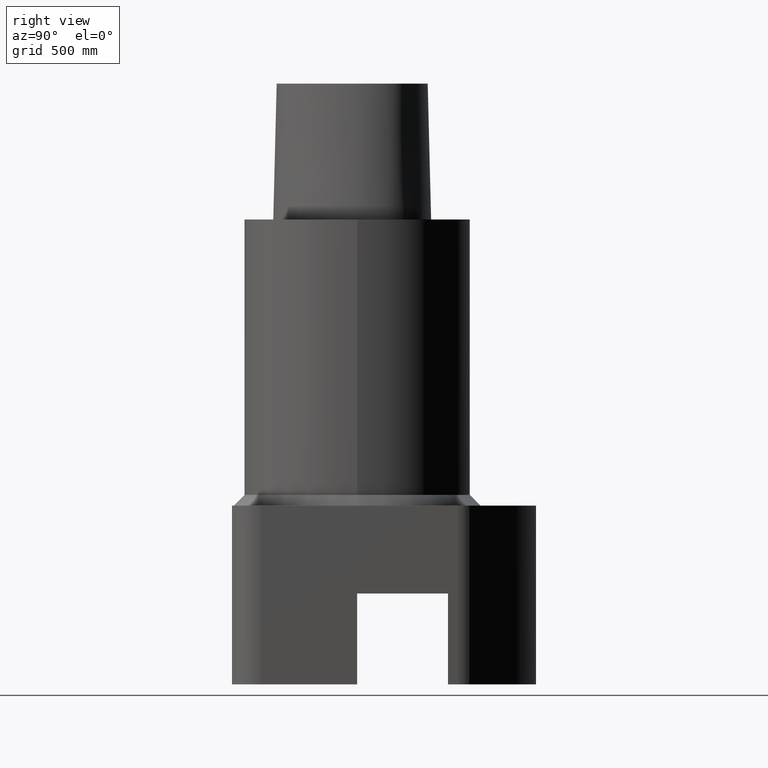
[diagram: clean part render]
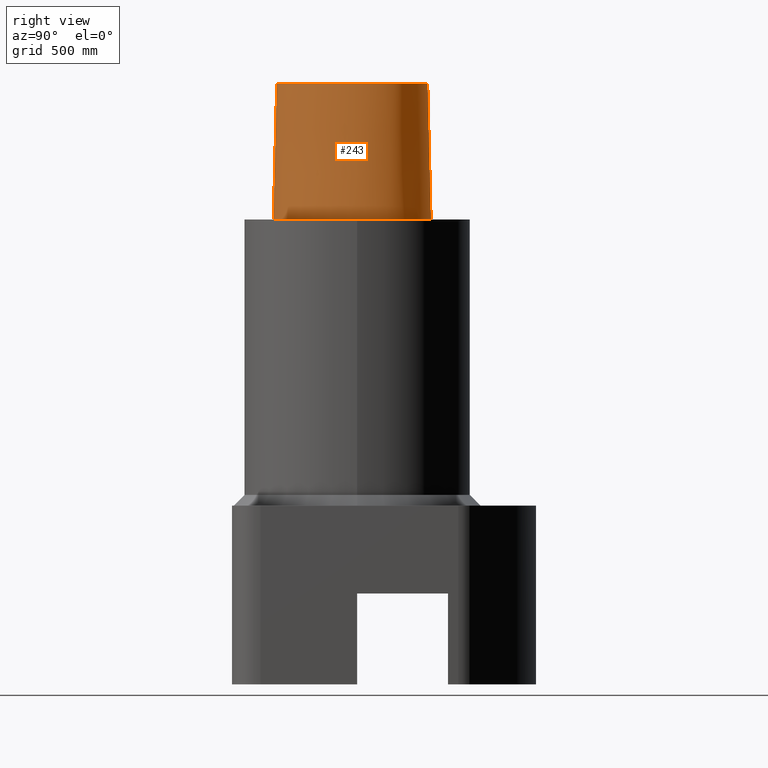
[diagram: same view with one face highlighted and labeled with its STEP entity id]
A machine part, right view. The second image highlights one B-rep face of the part: STEP entity #243.
In plain terms, the highlighted face is a freeform B-spline surface patch.
Its self-contained STEP definition (entity closure, byte-faithful):
#198=EDGE_CURVE('Unnamed[1]',#397,#409,#421,.T.);
#207=EDGE_CURVE('Unnamed[1]',#269,#431,#432,.T.);
#224=EDGE_CURVE('Unnamed[1]',#431,#409,#453,.T.);
#230=EDGE_CURVE('Unnamed[1]',#397,#269,#459,.T.);
#243=ADVANCED_FACE('Unnamed[1]',(#473),#474,.T.);
#269=VERTEX_POINT('',#493);
#397=VERTEX_POINT('',#674);
#409=VERTEX_POINT('',#707);
#421=LINE('',#740,#741);
#431=VERTEX_POINT('',#756);
#432=LINE('',#757,#758);
#453=B_SPLINE_CURVE_WITH_KNOTS('',3,(#858,#859,#860,#861,#862,#863,#864,#865,#866,#867,#868,#869,#870,#871,#872,#873,#874),.UNSPECIFIED.,.F.,.F.,(4,1,1,1,1,1,1,1,1,1,1,1,1,1,4),(-13.2302678617486,-12.816821991069,-12.4033761203893,-11.9899302497097,-11.57648437903,-11.1630385083504,-10.9563155730106,-10.7495926376707,-10.3361467669911,-9.92270089631145,-9.09580915495216,-8.26891741359287,-7.44202567223358,-7.02857980155394,-6.6151339308743),.UNSPECIFIED.);
#459=B_SPLINE_CURVE_WITH_KNOTS('',3,(#885,#886,#887,#888,#889,#890,#891,#892,#893,#894,#895,#896,#897,#898,#899,#900),.UNSPECIFIED.,.F.,.F.,(4,1,1,1,1,1,1,1,1,1,1,1,1,4),(6.61513393087476,6.99917207152274,7.48193246986995,7.96289324787093,8.45540287038584,9.10291653679981,9.67129810936083,10.1618749681153,10.6358867802489,11.1080734988593,11.6043706019633,12.09451993853,12.6985979284494,13.2302678617486),.UNSPECIFIED.);
#473=FACE_OUTER_BOUND('',#923,.T.);
#474=B_SPLINE_SURFACE_WITH_KNOTS('',3,3,((#924,#925,#926,#927),(#928,#929,#930,#931),(#932,#933,#934,#935),(#936,#937,#938,#939),(#940,#941,#942,#943),(#944,#945,#946,#947),(#948,#949,#950,#951),(#952,#953,#954,#955),(#956,#957,#958,#959),(#960,#961,#962,#963),(#964,#965,#966,#967),(#968,#969,#970,#971),(#972,#973,#974,#975),(#976,#977,#978,#979),(#980,#981,#982,#983),(#984,#985,#986,#987),(#988,#989,#990,#991)),.UNSPECIFIED.,.F.,.F.,.F.,(4,1,1,1,1,1,1,1,1,1,1,1,1,1,4),(4,4),(-13.2302678617486,-12.816821991069,-12.4033761203893,-11.9899302497097,-11.57648437903,-11.1630385083504,-10.9563155730106,-10.7495926376707,-10.3361467669911,-9.92270089631145,-9.09580915495216,-8.26891741359287,-7.44202567223358,-7.02857980155394,-6.6151339308743),(-3.8,0.0),.UNSPECIFIED.);
#493=CARTESIAN_POINT('',(-0.001218547003662,19.7276821925089,38.0));
#674=CARTESIAN_POINT('',(0.038736923393866,-22.5191997536361,38.0));
#707=CARTESIAN_POINT('',(0.04359356758149,-23.4691235068931,-1.97215226305253E-031));
#740=CARTESIAN_POINT('',(0.038736923393866,-22.5191997536361,38.0));
#741=VECTOR('',#1173,38.0118715498723);
#756=CARTESIAN_POINT('',(0.044682985379347,20.6765087343109,0.0));
#757=CARTESIAN_POINT('',(-0.001218547003662,19.7276821925089,38.0));
#758=VECTOR('',#1185,38.0118715503078);
#858=CARTESIAN_POINT('',(0.044682985379347,20.6765087343109,0.0));
#859=CARTESIAN_POINT('',(1.42379272427753,20.6097915814392,-1.97215226305253E-031));
#860=CARTESIAN_POINT('',(4.2230955003445,20.4837538303966,-1.97215226305253E-031));
#861=CARTESIAN_POINT('',(8.47220762821777,19.6890432607088,0.0));
#862=CARTESIAN_POINT('',(12.5141247708253,18.2434968480404,-1.97215226305253E-031));
#863=CARTESIAN_POINT('',(16.3038624872874,16.1734192182143,-1.97215226305253E-031));
#864=CARTESIAN_POINT('',(19.1446913988473,13.7036723639434,-3.94430452610506E-031));
#865=CARTESIAN_POINT('',(20.7319894342149,11.1014620996188,-1.97215226305253E-031));
#866=CARTESIAN_POINT('',(21.7831756505763,8.28099229708081,9.86076131526265E-032));
#867=CARTESIAN_POINT('',(22.2258240701438,4.60865440596506,-9.86076131526265E-032));
#868=CARTESIAN_POINT('',(21.7436130080666,-1.11326526354485,-2.46519032881566E-031));
#869=CARTESIAN_POINT('',(19.5519487660502,-7.95432366164584,-5.91645678915759E-031));
#870=CARTESIAN_POINT('',(14.9574167123838,-15.2089785567293,-3.94430452610506E-031));
#871=CARTESIAN_POINT('',(9.66840283021945,-20.0827414369705,0.0));
#872=CARTESIAN_POINT('',(4.51628650521788,-22.7946374572188,0.0));
#873=CARTESIAN_POINT('',(1.55867251738073,-23.4612972770043,-1.97215226305253E-031));
#874=CARTESIAN_POINT('',(0.04359356758149,-23.4691235068931,-1.97215226305253E-031));
#885=CARTESIAN_POINT('',(0.038736923394311,-22.519199753636,38.0));
#886=CARTESIAN_POINT('',(1.31742058183662,-22.512662269405,38.0));
#887=CARTESIAN_POINT('',(4.2093773447498,-21.9116226439989,38.0));
#888=CARTESIAN_POINT('',(8.20895504542113,-19.7798683845067,38.0));
#889=CARTESIAN_POINT('',(11.9784633234593,-16.681663904162,38.0));
#890=CARTESIAN_POINT('',(15.5308821579362,-12.5807487594113,38.0));
#891=CARTESIAN_POINT('',(18.4566248438667,-7.64932246015528,38.0));
#892=CARTESIAN_POINT('',(20.4036090752029,-2.27012499825289,38.0));
#893=CARTESIAN_POINT('',(21.2357187429189,2.79891401173156,38.0));
#894=CARTESIAN_POINT('',(21.0811206267748,7.62543090736657,38.0));
#895=CARTESIAN_POINT('',(19.3383577336563,12.2772250726194,38.0));
#896=CARTESIAN_POINT('',(15.5796322014404,15.5799672120682,38.0));
#897=CARTESIAN_POINT('',(10.8392956074438,17.9834601687347,38.0));
#898=CARTESIAN_POINT('',(5.56068045850571,19.4586143858472,38.0));
#899=CARTESIAN_POINT('',(1.77223893711014,19.6418877095654,38.0));
#900=CARTESIAN_POINT('',(-0.001218367817519,19.7276822012873,38.0));
#923=EDGE_LOOP('',(#1226,#1227,#1228,#1229));
#924=CARTESIAN_POINT('',(-0.001218367817519,19.7276822012873,38.0));
#925=CARTESIAN_POINT('',(0.014082083248157,20.0439577123075,25.3333333333066));
#926=CARTESIAN_POINT('',(0.029382534313671,20.3602332232908,12.6666666666934));
#927=CARTESIAN_POINT('',(0.044682985379347,20.6765087343109,0.0));
#928=CARTESIAN_POINT('',(1.37788651195108,19.6609652834875,38.0));
#929=CARTESIAN_POINT('',(1.3931885827258,19.9772407169847,25.3333333333066));
#930=CARTESIAN_POINT('',(1.40849065356095,20.2935162254648,12.6666666666934));
#931=CARTESIAN_POINT('',(1.42379272427753,20.6097915814392,-1.97215226305253E-031));
#932=CARTESIAN_POINT('',(4.135446440878,19.5347778787784,38.0));
#933=CARTESIAN_POINT('',(4.16466278851883,19.8511031866125,25.3333333333066));
#934=CARTESIAN_POINT('',(4.1938791526746,20.1674284644204,12.6666666666934));
#935=CARTESIAN_POINT('',(4.2230955003445,20.4837538303966,-1.97215226305253E-031));
#936=CARTESIAN_POINT('',(8.213607363795,18.7706026638736,38.0));
#937=CARTESIAN_POINT('',(8.29980745008421,19.0767495109635,25.3333333333066));
#938=CARTESIAN_POINT('',(8.38600751285747,19.3828964329996,12.6666666666934));
#939=CARTESIAN_POINT('',(8.47220762821777,19.6890432607088,0.0));
#940=CARTESIAN_POINT('',(12.1316338645671,17.3698624840857,38.0));
#941=CARTESIAN_POINT('',(12.2591308270381,17.6610739397708,25.3333333333066));
#942=CARTESIAN_POINT('',(12.3866278083543,17.9522853923553,12.6666666666934));
#943=CARTESIAN_POINT('',(12.5141247708253,18.2434968480404,-1.97215226305253E-031));
#944=CARTESIAN_POINT('',(15.7706546153679,15.3789501349612,38.0));
#945=CARTESIAN_POINT('',(15.9483905900895,15.6437731794811,25.3333333333066));
#946=CARTESIAN_POINT('',(16.1261265513272,15.9085961736944,12.6666666666934));
#947=CARTESIAN_POINT('',(16.3038624872874,16.1734192182143,-1.97215226305253E-031));
#948=CARTESIAN_POINT('',(18.4265894256284,13.0570022172893,38.0));
#949=CARTESIAN_POINT('',(18.6659567517146,13.2725589420689,25.3333333333066));
#950=CARTESIAN_POINT('',(18.9053240921419,13.4881156488541,12.6666666666934));
#951=CARTESIAN_POINT('',(19.1446913988473,13.7036723639434,-3.94430452610506E-031));
#952=CARTESIAN_POINT('',(19.8679958653038,10.6923771981998,38.0));
#953=CARTESIAN_POINT('',(20.1559937048299,10.8287388264873,25.3333333333066));
#954=CARTESIAN_POINT('',(20.4439915656177,10.965100461641,12.6666666666934));
#955=CARTESIAN_POINT('',(20.7319894342149,11.1014620996188,-1.97215226305253E-031));
#956=CARTESIAN_POINT('',(20.8470867582337,8.07149548576131,38.0));
#957=CARTESIAN_POINT('',(21.1591164072431,8.14132775555392,25.3333333333066));
#958=CARTESIAN_POINT('',(21.4711459821861,8.21116003697855,12.6666666666934));
#959=CARTESIAN_POINT('',(21.7831756505763,8.28099229708081,9.86076131526265E-032));
#960=CARTESIAN_POINT('',(21.2693244256982,4.61157245650171,38.0));
#961=CARTESIAN_POINT('',(21.5881576801997,4.6105997689982,25.3333333333066));
#962=CARTESIAN_POINT('',(21.9069908544037,4.60962709346857,12.6666666666934));
#963=CARTESIAN_POINT('',(22.2258240701438,4.60865440596506,-9.86076131526265E-032));
#964=CARTESIAN_POINT('',(20.8071610855575,-0.912828649855193,38.0));
#965=CARTESIAN_POINT('',(21.119311671178,-0.979640884839481,25.3333333333066));
#966=CARTESIAN_POINT('',(21.4314624224461,-1.04645306732201,12.6666666666934));
#967=CARTESIAN_POINT('',(21.7436130080666,-1.11326526354485,-2.46519032881566E-031));
#968=CARTESIAN_POINT('',(18.6841935581315,-7.54428794252837,38.0));
#969=CARTESIAN_POINT('',(18.9734452551861,-7.6809665891091,25.3333333333066));
#970=CARTESIAN_POINT('',(19.2626970689956,-7.81764505382656,12.6666666666934));
#971=CARTESIAN_POINT('',(19.5519487660502,-7.95432366164584,-5.91645678915759E-031));
#972=CARTESIAN_POINT('',(14.2175552814,-14.5971504342323,38.0));
#973=CARTESIAN_POINT('',(14.4641757465198,-14.8010930946929,25.3333333333066));
#974=CARTESIAN_POINT('',(14.710796247264,-15.0050359737917,12.6666666666934));
#975=CARTESIAN_POINT('',(14.9574167123838,-15.2089785567293,-3.94430452610506E-031));
#976=CARTESIAN_POINT('',(9.0844808732933,-19.3179298129689,38.0));
#977=CARTESIAN_POINT('',(9.27912152349017,-19.572866915557,25.3333333333066));
#978=CARTESIAN_POINT('',(9.47376218971294,-19.827804295621,12.6666666666934));
#979=CARTESIAN_POINT('',(9.66840283021945,-20.0827414369705,0.0));
#980=CARTESIAN_POINT('',(4.17112919194182,-21.8987568152736,38.0));
#981=CARTESIAN_POINT('',(4.28618163483998,-22.1973837173649,25.3333333333066));
#982=CARTESIAN_POINT('',(4.40123406239433,-22.4960105163661,12.6666666666934));
#983=CARTESIAN_POINT('',(4.51628650521788,-22.7946374572188,0.0));
#984=CARTESIAN_POINT('',(1.41533654381097,-22.5120888467812,38.0));
#985=CARTESIAN_POINT('',(1.46311520162011,-22.8284916374445,25.3333333333066));
#986=CARTESIAN_POINT('',(1.51089385942236,-23.144894486341,12.6666666666934));
#987=CARTESIAN_POINT('',(1.55867251738073,-23.4612972770043,-1.97215226305253E-031));
#988=CARTESIAN_POINT('',(0.038736923393866,-22.5191997536361,38.0));
#989=CARTESIAN_POINT('',(0.04035580478973,-22.8358410047159,25.3333333333066));
#990=CARTESIAN_POINT('',(0.041974686185626,-23.1524822558133,12.6666666666934));
#991=CARTESIAN_POINT('',(0.04359356758149,-23.4691235068931,-1.97215226305253E-031));
#1173=DIRECTION('',(0.000127766510556,-0.024990186342461,-0.999687688361864));
#1185=DIRECTION('',(0.001207557810519,0.024961321374199,-0.999687688350411));
#1226=ORIENTED_EDGE('',*,*,#224,.F.);
#1227=ORIENTED_EDGE('',*,*,#207,.F.);
#1228=ORIENTED_EDGE('',*,*,#230,.F.);
#1229=ORIENTED_EDGE('',*,*,#198,.T.);